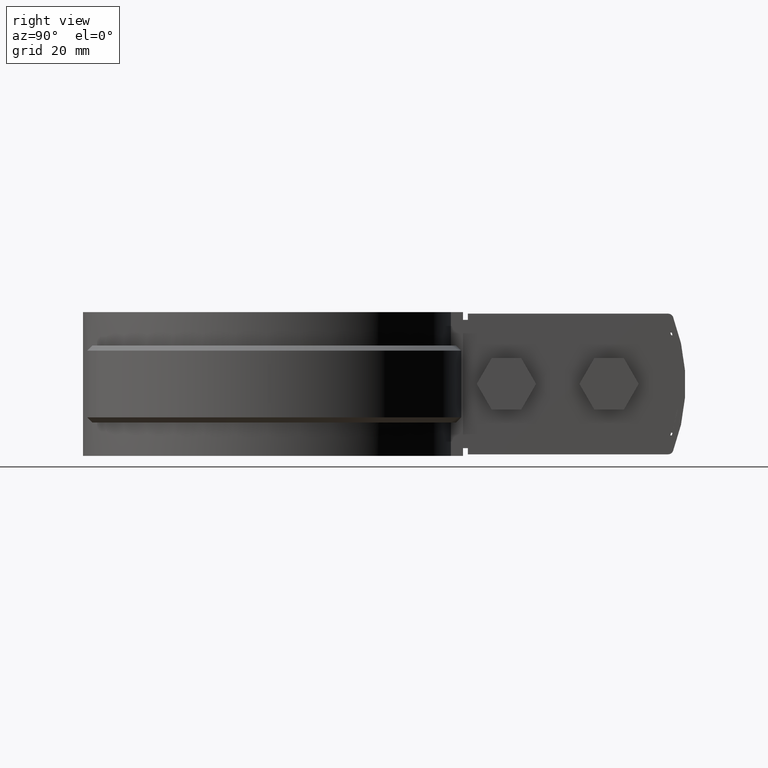
[diagram: clean part render]
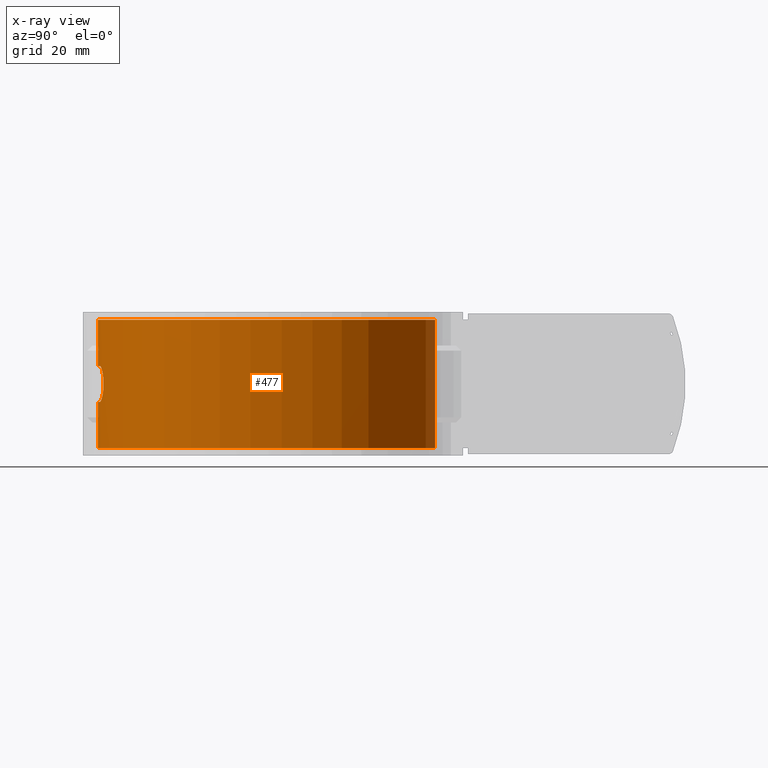
[diagram: x-ray — body ghosted, one internal face saturated and labeled with its STEP entity id]
A machine part, right view, then the same camera in x-ray: the body is ghosted and one INTERNAL B-rep face — a face not visible from any outside direction — is saturated and labeled: STEP entity #477.
In plain terms, the highlighted cylindrical surface (partial cylindrical patch) has radius 33.2 mm, axis along (0, 0, 1).
Its self-contained STEP definition (entity closure, byte-faithful):
#477 = ADVANCED_FACE( '', ( #844, #845 ), #846, .F. );
#844 = FACE_OUTER_BOUND( '', #1596, .T. );
#845 = FACE_BOUND( '', #1597, .T. );
#846 = CYLINDRICAL_SURFACE( '', #1598, 33.2000000000000 );
#1596 = EDGE_LOOP( '', ( #3446, #3447, #3448, #3449 ) );
#1597 = EDGE_LOOP( '', ( #3450, #3451, #3452, #3453, #3454, #3455, #3456, #3457, #3458, #3459, #3460, #3461, #3462, #3463, #3464, #3465 ) );
#1598 = AXIS2_PLACEMENT_3D( '', #3466, #3467, #3468 );
#3446 = ORIENTED_EDGE( '', *, *, #6889, .T. );
#3447 = ORIENTED_EDGE( '', *, *, #6890, .F. );
#3448 = ORIENTED_EDGE( '', *, *, #6891, .F. );
#3449 = ORIENTED_EDGE( '', *, *, #6836, .T. );
#3450 = ORIENTED_EDGE( '', *, *, #6892, .T. );
#3451 = ORIENTED_EDGE( '', *, *, #6844, .T. );
#3452 = ORIENTED_EDGE( '', *, *, #6847, .T. );
#3453 = ORIENTED_EDGE( '', *, *, #6893, .T. );
#3454 = ORIENTED_EDGE( '', *, *, #6894, .T. );
#3455 = ORIENTED_EDGE( '', *, *, #6895, .T. );
#3456 = ORIENTED_EDGE( '', *, *, #6896, .T. );
#3457 = ORIENTED_EDGE( '', *, *, #6897, .T. );
#3458 = ORIENTED_EDGE( '', *, *, #6898, .T. );
#3459 = ORIENTED_EDGE( '', *, *, #6899, .T. );
#3460 = ORIENTED_EDGE( '', *, *, #6900, .T. );
#3461 = ORIENTED_EDGE( '', *, *, #6901, .T. );
#3462 = ORIENTED_EDGE( '', *, *, #6902, .T. );
#3463 = ORIENTED_EDGE( '', *, *, #6903, .T. );
#3464 = ORIENTED_EDGE( '', *, *, #6904, .T. );
#3465 = ORIENTED_EDGE( '', *, *, #6905, .T. );
#3466 = CARTESIAN_POINT( '', ( 0.000000000000000, 0.000000000000000, 0.000000000000000 ) );
#3467 = DIRECTION( '', ( 0.000000000000000, 0.000000000000000, 1.00000000000000 ) );
#3468 = DIRECTION( '', ( 1.00000000000000, -6.12303176911189E-017, 0.000000000000000 ) );
#6836 = EDGE_CURVE( '', #7806, #7804, #7807, .T. );
#6844 = EDGE_CURVE( '', #7812, #7820, #7822, .T. );
#6847 = EDGE_CURVE( '', #7820, #7825, #7827, .T. );
#6889 = EDGE_CURVE( '', #7804, #7897, #7898, .T. );
#6890 = EDGE_CURVE( '', #7899, #7897, #7900, .T. );
#6891 = EDGE_CURVE( '', #7806, #7899, #7901, .T. );
#6892 = EDGE_CURVE( '', #7902, #7812, #7903, .T. );
#6893 = EDGE_CURVE( '', #7825, #7904, #7905, .T. );
#6894 = EDGE_CURVE( '', #7904, #7906, #7907, .T. );
#6895 = EDGE_CURVE( '', #7906, #7908, #7909, .T. );
#6896 = EDGE_CURVE( '', #7908, #7910, #7911, .T. );
#6897 = EDGE_CURVE( '', #7910, #7912, #7913, .T. );
#6898 = EDGE_CURVE( '', #7912, #7914, #7915, .T. );
#6899 = EDGE_CURVE( '', #7914, #7916, #7917, .T. );
#6900 = EDGE_CURVE( '', #7916, #7918, #7919, .T. );
#6901 = EDGE_CURVE( '', #7918, #7920, #7921, .T. );
#6902 = EDGE_CURVE( '', #7920, #7922, #7923, .T. );
#6903 = EDGE_CURVE( '', #7922, #7924, #7925, .T. );
#6904 = EDGE_CURVE( '', #7924, #7926, #7927, .T. );
#6905 = EDGE_CURVE( '', #7926, #7902, #7928, .T. );
#7804 = VERTEX_POINT( '', #9337 );
#7806 = VERTEX_POINT( '', #9339 );
#7807 = CIRCLE( '', #9340, 33.2000000000000 );
#7812 = VERTEX_POINT( '', #9346 );
#7820 = VERTEX_POINT( '', #9390 );
#7822 = B_SPLINE_CURVE_WITH_KNOTS( '', 3, ( #9393, #9394, #9395, #9396, #9397, #9398, #9399, #9400, #9401, #9402, #9403, #9404, #9405, #9406, #9407, #9408, #9409, #9410, #9411, #9412, #9413, #9414, #9415, #9416, #9417, #9418, #9419, #9420, #9421, #9422, #9423, #9424, #9425, #9426 ), .UNSPECIFIED., .F., .F., ( 4, 2, 2, 2, 2, 2, 2, 2, 2, 2, 2, 2, 2, 2, 2, 2, 4 ), ( 0.000000000000000, 0.000690500935310912, 0.00138100187062182, 0.00207150280593274, 0.00276200374124365, 0.00345250467655456, 0.00414300561186547, 0.00483350654717639, 0.00552400748248730, 0.00621450841779822, 0.00690500935310913, 0.00759551028842004, 0.00828601122373096, 0.00897651215904187, 0.00966701309435279, 0.0103575140296637, 0.0110480149649746 ), .UNSPECIFIED. );
#7825 = VERTEX_POINT( '', #9429 );
#7827 = CIRCLE( '', #9432, 33.2000000000000 );
#7897 = VERTEX_POINT( '', #9941 );
#7898 = LINE( '', #9942, #9943 );
#7899 = VERTEX_POINT( '', #9944 );
#7900 = CIRCLE( '', #9945, 33.2000000000000 );
#7901 = LINE( '', #9946, #9947 );
#7902 = VERTEX_POINT( '', #9948 );
#7903 = CIRCLE( '', #9949, 33.2000000000000 );
#7904 = VERTEX_POINT( '', #9950 );
#7905 = B_SPLINE_CURVE_WITH_KNOTS( '', 3, ( #9951, #9952, #9953, #9954, #9955, #9956 ), .UNSPECIFIED., .F., .F., ( 4, 2, 4 ), ( 8.20849171219253E-018, 0.000335955763121275, 0.000671911526242541 ), .UNSPECIFIED. );
#7906 = VERTEX_POINT( '', #9957 );
#7907 = ELLIPSE( '', #9958, 151.244521597733, 33.2000000000000 );
#7908 = VERTEX_POINT( '', #9959 );
#7909 = B_SPLINE_CURVE_WITH_KNOTS( '', 3, ( #9960, #9961, #9962, #9963, #9964, #9965, #9966, #9967, #9968, #9969 ), .UNSPECIFIED., .F., .F., ( 4, 2, 2, 2, 4 ), ( 0.000000000000000, 0.000671589101721857, 0.00134317820344371, 0.00201476730516557, 0.00268635640688743 ), .UNSPECIFIED. );
#7910 = VERTEX_POINT( '', #9970 );
#7911 = ELLIPSE( '', #9971, 151.244598751074, 33.2000000000000 );
#7912 = VERTEX_POINT( '', #9972 );
#7913 = B_SPLINE_CURVE_WITH_KNOTS( '', 3, ( #9973, #9974, #9975, #9976, #9977, #9978 ), .UNSPECIFIED., .F., .F., ( 4, 2, 4 ), ( 4.33680868994202E-019, 0.000335959211583017, 0.000671918423166034 ), .UNSPECIFIED. );
#7914 = VERTEX_POINT( '', #9979 );
#7915 = CIRCLE( '', #9980, 33.2000000000000 );
#7916 = VERTEX_POINT( '', #9981 );
#7917 = B_SPLINE_CURVE_WITH_KNOTS( '', 3, ( #9982, #9983, #9984, #9985, #9986, #9987, #9988, #9989, #9990, #9991, #9992, #9993, #9994, #9995, #9996, #9997, #9998, #9999, #10000, #10001, #10002, #10003, #10004, #10005, #10006, #10007, #10008, #10009, #10010, #10011, #10012, #10013, #10014, #10015 ), .UNSPECIFIED., .F., .F., ( 4, 2, 2, 2, 2, 2, 2, 2, 2, 2, 2, 2, 2, 2, 2, 2, 4 ), ( 3.46944695195361E-018, 0.000690500935310921, 0.00138100187062184, 0.00207150280593276, 0.00276200374124367, 0.00345250467655459, 0.00414300561186551, 0.00483350654717642, 0.00552400748248734, 0.00621450841779826, 0.00690500935310917, 0.00759551028842009, 0.00828601122373101, 0.00897651215904192, 0.00966701309435284, 0.0103575140296638, 0.0110480149649747 ), .UNSPECIFIED. );
#7918 = VERTEX_POINT( '', #10016 );
#7919 = CIRCLE( '', #10017, 33.2000000000000 );
#7920 = VERTEX_POINT( '', #10018 );
#7921 = B_SPLINE_CURVE_WITH_KNOTS( '', 3, ( #10019, #10020, #10021, #10022, #10023, #10024 ), .UNSPECIFIED., .F., .F., ( 4, 2, 4 ), ( 2.81892564846231E-018, 0.000335955763121325, 0.000671911526242646 ), .UNSPECIFIED. );
#7922 = VERTEX_POINT( '', #10025 );
#7923 = ELLIPSE( '', #10026, 151.244521597741, 33.2000000000000 );
#7924 = VERTEX_POINT( '', #10027 );
#7925 = B_SPLINE_CURVE_WITH_KNOTS( '', 3, ( #10028, #10029, #10030, #10031, #10032, #10033, #10034, #10035, #10036, #10037 ), .UNSPECIFIED., .F., .F., ( 4, 2, 2, 2, 4 ), ( 0.000000000000000, 0.000671589101721865, 0.00134317820344373, 0.00201476730516559, 0.00268635640688746 ), .UNSPECIFIED. );
#7926 = VERTEX_POINT( '', #10038 );
#7927 = ELLIPSE( '', #10039, 151.244598751106, 33.2000000000000 );
#7928 = B_SPLINE_CURVE_WITH_KNOTS( '', 3, ( #10040, #10041, #10042, #10043, #10044, #10045 ), .UNSPECIFIED., .F., .F., ( 4, 2, 4 ), ( 4.33680868994202E-019, 0.000335959211583063, 0.000671918423166125 ), .UNSPECIFIED. );
#9337 = CARTESIAN_POINT( '', ( 6.87845303867403, 32.4796379874338, 0.000000000000000 ) );
#9339 = CARTESIAN_POINT( '', ( -6.87845303867403, 32.4796379874339, 0.000000000000000 ) );
#9340 = AXIS2_PLACEMENT_3D( '', #13125, #13126, #13127 );
#9346 = CARTESIAN_POINT( '', ( 4.99999999999994, -32.8213345249702, -16.0000000000000 ) );
#9390 = CARTESIAN_POINT( '', ( 5.00000000000000, -32.8213345249702, -9.00000000000000 ) );
#9393 = CARTESIAN_POINT( '', ( 4.99999999999994, -32.8213345249702, -16.0000000000000 ) );
#9394 = CARTESIAN_POINT( '', ( 5.23084921030108, -32.7861669710541, -16.0000000000000 ) );
#9395 = CARTESIAN_POINT( '', ( 5.45747988297883, -32.7491523017657, -15.9773877849973 ) );
#9396 = CARTESIAN_POINT( '', ( 5.90275949577502, -32.6718302746020, -15.8891796859074 ) );
#9397 = CARTESIAN_POINT( '', ( 6.12357628297642, -32.6310894074732, -15.8225965676872 ) );
#9398 = CARTESIAN_POINT( '', ( 6.54548231117699, -32.5490836080835, -15.6485800039244 ) );
#9399 = CARTESIAN_POINT( '', ( 6.74552077936947, -32.5080826622950, -15.5421686277110 ) );
#9400 = CARTESIAN_POINT( '', ( 7.12421993363249, -32.4271950575554, -15.2909357613886 ) );
#9401 = CARTESIAN_POINT( '', ( 7.30403177727764, -32.3870131745885, -15.1444800190069 ) );
#9402 = CARTESIAN_POINT( '', ( 7.62721523967833, -32.3124293463378, -14.8236990093456 ) );
#9403 = CARTESIAN_POINT( '', ( 7.77244117980513, -32.2776495567784, -14.6485618952969 ) );
#9404 = CARTESIAN_POINT( '', ( 8.02943566167348, -32.2146809041899, -14.2678427207142 ) );
#9405 = CARTESIAN_POINT( '', ( 8.13993657243046, -32.1867949415151, -14.0630878043780 ) );
#9406 = CARTESIAN_POINT( '', ( 8.31684288693588, -32.1415379284246, -13.6406131800327 ) );
#9407 = CARTESIAN_POINT( '', ( 8.38480571156870, -32.1237809886094, -13.4205744905053 ) );
#9408 = CARTESIAN_POINT( '', ( 8.47700813326851, -32.0995732827307, -12.9634452921563 ) );
#9409 = CARTESIAN_POINT( '', ( 8.49975843460962, -32.0935212560846, -12.7339789428233 ) );
#9410 = CARTESIAN_POINT( '', ( 8.50023777599689, -32.0933943018339, -12.2733047027611 ) );
#9411 = CARTESIAN_POINT( '', ( 8.47725369520003, -32.0995073498531, -12.0394110502476 ) );
#9412 = CARTESIAN_POINT( '', ( 8.38647345527059, -32.1233445534568, -11.5860891847866 ) );
#9413 = CARTESIAN_POINT( '', ( 8.31935644896024, -32.1408880607364, -11.3664190672137 ) );
#9414 = CARTESIAN_POINT( '', ( 8.14201835896845, -32.1862690304400, -10.9408805054340 ) );
#9415 = CARTESIAN_POINT( '', ( 8.03138785948916, -32.2141900116620, -10.7356750195806 ) );
#9416 = CARTESIAN_POINT( '', ( 7.77641675908881, -32.2766877396981, -10.3567163111149 ) );
#9417 = CARTESIAN_POINT( '', ( 7.63087638544959, -32.3115738299843, -10.1801954602158 ) );
#9418 = CARTESIAN_POINT( '', ( 7.30433539945414, -32.3869535793785, -9.85556394950789 ) );
#9419 = CARTESIAN_POINT( '', ( 7.12802164774180, -32.4263568283259, -9.71198873380384 ) );
#9420 = CARTESIAN_POINT( '', ( 6.75023924814036, -32.5071004530004, -9.46056822284763 ) );
#9421 = CARTESIAN_POINT( '', ( 6.54639958869981, -32.5488968659586, -9.35189432936939 ) );
#9422 = CARTESIAN_POINT( '', ( 6.12517167846806, -32.6307877115314, -9.17796603037221 ) );
#9423 = CARTESIAN_POINT( '', ( 5.90822165067789, -32.6708479035511, -9.11222808005995 ) );
#9424 = CARTESIAN_POINT( '', ( 5.46154876269565, -32.7484789100686, -9.02309938480425 ) );
#9425 = CARTESIAN_POINT( '', ( 5.23085094566291, -32.7861667066892, -8.99999999999998 ) );
#9426 = CARTESIAN_POINT( '', ( 5.00000000000000, -32.8213345249702, -8.99999999999997 ) );
#9429 = CARTESIAN_POINT( '', ( 1.64999999999995, -33.1589731445351, -9.00000000000000 ) );
#9432 = AXIS2_PLACEMENT_3D( '', #13138, #13139, #13140 );
#9941 = CARTESIAN_POINT( '', ( 6.87845303867403, 32.4796379874338, -25.0000000000000 ) );
#9942 = CARTESIAN_POINT( '', ( 6.87845303867403, 32.4796379874338, 0.000000000000000 ) );
#9943 = VECTOR( '', #13172, 1000.00000000000 );
#9944 = CARTESIAN_POINT( '', ( -6.87845303867403, 32.4796379874339, -25.0000000000000 ) );
#9945 = AXIS2_PLACEMENT_3D( '', #13173, #13174, #13175 );
#9946 = CARTESIAN_POINT( '', ( -6.87845303867403, 32.4796379874339, 0.000000000000000 ) );
#9947 = VECTOR( '', #13176, 1000.00000000000 );
#9948 = CARTESIAN_POINT( '', ( 1.65000000000001, -33.1589731445351, -16.0000000000000 ) );
#9949 = AXIS2_PLACEMENT_3D( '', #13177, #13178, #13179 );
#9950 = CARTESIAN_POINT( '', ( 1.16219499999998, -33.1796519388310, -8.60975599999999 ) );
#9951 = CARTESIAN_POINT( '', ( 1.64999999999995, -33.1589731445351, -8.99999999999995 ) );
#9952 = CARTESIAN_POINT( '', ( 1.53654422514443, -33.1646187363843, -9.00000000048690 ) );
#9953 = CARTESIAN_POINT( '', ( 1.42641379671062, -33.1694621353122, -8.96140842161096 ) );
#9954 = CARTESIAN_POINT( '', ( 1.24907930742234, -33.1766133827599, -8.81961094403617 ) );
#9955 = CARTESIAN_POINT( '', ( 1.18713070278866, -33.1787785074534, -8.72058134794849 ) );
#9956 = CARTESIAN_POINT( '', ( 1.16219499999998, -33.1796519388310, -8.60975599999999 ) );
#9957 = CARTESIAN_POINT( '', ( 0.975609757981812, -33.1856623498783, -7.78048781325256 ) );
#9958 = AXIS2_PLACEMENT_3D( '', #13180, #13181, #13182 );
#9959 = CARTESIAN_POINT( '', ( -0.975610000000026, -33.1856623427633, -7.78048800000004 ) );
#9960 = CARTESIAN_POINT( '', ( 0.975609757981814, -33.1856623498783, -7.78048781325255 ) );
#9961 = CARTESIAN_POINT( '', ( 0.925762326756759, -33.1871277911825, -7.55894376460343 ) );
#9962 = CARTESIAN_POINT( '', ( 0.802004548308670, -33.1907854075813, -7.36098149337162 ) );
#9963 = CARTESIAN_POINT( '', ( 0.447399790430913, -33.1974589493705, -7.07729236627280 ) );
#9964 = CARTESIAN_POINT( '', ( 0.227086304491498, -33.2000000047057, -6.99999986304586 ) );
#9965 = CARTESIAN_POINT( '', ( -0.227087680434378, -33.1999999952943, -7.00000013008715 ) );
#9966 = CARTESIAN_POINT( '', ( -0.447417765261210, -33.1974586569516, -7.07730346466726 ) );
#9967 = CARTESIAN_POINT( '', ( -0.802003740815405, -33.1907853769145, -7.36098380924595 ) );
#9968 = CARTESIAN_POINT( '', ( -0.925762610374490, -33.1871277832084, -7.55894393822003 ) );
#9969 = CARTESIAN_POINT( '', ( -0.975610000000026, -33.1856623427633, -7.78048800000004 ) );
#9970 = CARTESIAN_POINT( '', ( -1.16219512100914, -33.1796519345924, -8.60975609337373 ) );
#9971 = AXIS2_PLACEMENT_3D( '', #13183, #13184, #13185 );
#9972 = CARTESIAN_POINT( '', ( -1.65000000000003, -33.1589731445351, -9.00000000000000 ) );
#9973 = CARTESIAN_POINT( '', ( -1.16219512100916, -33.1796519345924, -8.60975609337372 ) );
#9974 = CARTESIAN_POINT( '', ( -1.18713081660252, -33.1787785033758, -8.72058141156409 ) );
#9975 = CARTESIAN_POINT( '', ( -1.24907585165398, -33.1766135180091, -8.81960754419904 ) );
#9976 = CARTESIAN_POINT( '', ( -1.42641418271852, -33.1694621238552, -8.96140929482023 ) );
#9977 = CARTESIAN_POINT( '', ( -1.53654425413596, -33.1646187349416, -8.99999999999994 ) );
#9978 = CARTESIAN_POINT( '', ( -1.65000000000003, -33.1589731445351, -8.99999999999994 ) );
#9979 = CARTESIAN_POINT( '', ( -5.00000000000005, -32.8213345249702, -9.00000000000000 ) );
#9980 = AXIS2_PLACEMENT_3D( '', #13186, #13187, #13188 );
#9981 = CARTESIAN_POINT( '', ( -5.00000000000005, -32.8213345249702, -16.0000000000000 ) );
#9982 = CARTESIAN_POINT( '', ( -5.00000000000005, -32.8213345249702, -8.99999999999997 ) );
#9983 = CARTESIAN_POINT( '', ( -5.23084921030119, -32.7861669710541, -8.99999999999997 ) );
#9984 = CARTESIAN_POINT( '', ( -5.45747988297895, -32.7491523017657, -9.02261221500260 ) );
#9985 = CARTESIAN_POINT( '', ( -5.90275949577514, -32.6718302746020, -9.11082031409260 ) );
#9986 = CARTESIAN_POINT( '', ( -6.12357628297654, -32.6310894074732, -9.17740343231274 ) );
#9987 = CARTESIAN_POINT( '', ( -6.54548231117711, -32.5490836080835, -9.35141999607550 ) );
#9988 = CARTESIAN_POINT( '', ( -6.74552077936960, -32.5080826622950, -9.45783137228895 ) );
#9989 = CARTESIAN_POINT( '', ( -7.12421993363261, -32.4271950575553, -9.70906423861131 ) );
#9990 = CARTESIAN_POINT( '', ( -7.30403177727776, -32.3870131745885, -9.85551998099308 ) );
#9991 = CARTESIAN_POINT( '', ( -7.62721523967846, -32.3124293463377, -10.1763009906544 ) );
#9992 = CARTESIAN_POINT( '', ( -7.77244117980526, -32.2776495567784, -10.3514381047031 ) );
#9993 = CARTESIAN_POINT( '', ( -8.02943566167360, -32.2146809041898, -10.7321572792858 ) );
#9994 = CARTESIAN_POINT( '', ( -8.13993657243058, -32.1867949415151, -10.9369121956220 ) );
#9995 = CARTESIAN_POINT( '', ( -8.31684288693600, -32.1415379284246, -11.3593868199673 ) );
#9996 = CARTESIAN_POINT( '', ( -8.38480571156882, -32.1237809886094, -11.5794255094947 ) );
#9997 = CARTESIAN_POINT( '', ( -8.47700813326862, -32.0995732827306, -12.0365547078436 ) );
#9998 = CARTESIAN_POINT( '', ( -8.49975843460973, -32.0935212560846, -12.2660210571767 ) );
#9999 = CARTESIAN_POINT( '', ( -8.50023777599700, -32.0933943018339, -12.7266952972389 ) );
#10000 = CARTESIAN_POINT( '', ( -8.47725369520014, -32.0995073498531, -12.9605889497524 ) );
#10001 = CARTESIAN_POINT( '', ( -8.38647345527069, -32.1233445534567, -13.4139108152134 ) );
#10002 = CARTESIAN_POINT( '', ( -8.31935644896034, -32.1408880607364, -13.6335809327863 ) );
#10003 = CARTESIAN_POINT( '', ( -8.14201835896855, -32.1862690304400, -14.0591194945660 ) );
#10004 = CARTESIAN_POINT( '', ( -8.03138785948925, -32.2141900116619, -14.2643249804194 ) );
#10005 = CARTESIAN_POINT( '', ( -7.77641675908889, -32.2766877396980, -14.6432836888851 ) );
#10006 = CARTESIAN_POINT( '', ( -7.63087638544967, -32.3115738299843, -14.8198045397842 ) );
#10007 = CARTESIAN_POINT( '', ( -7.30433539945421, -32.3869535793785, -15.1444360504921 ) );
#10008 = CARTESIAN_POINT( '', ( -7.12802164774187, -32.4263568283259, -15.2880112661961 ) );
#10009 = CARTESIAN_POINT( '', ( -6.75023924814043, -32.5071004530004, -15.5394317771523 ) );
#10010 = CARTESIAN_POINT( '', ( -6.54639958869988, -32.5488968659585, -15.6481056706306 ) );
#10011 = CARTESIAN_POINT( '', ( -6.12517167846813, -32.6307877115314, -15.8220339696278 ) );
#10012 = CARTESIAN_POINT( '', ( -5.90822165067795, -32.6708479035511, -15.8877719199400 ) );
#10013 = CARTESIAN_POINT( '', ( -5.46154876269571, -32.7484789100686, -15.9769006151957 ) );
#10014 = CARTESIAN_POINT( '', ( -5.23085094566297, -32.7861667066892, -16.0000000000000 ) );
#10015 = CARTESIAN_POINT( '', ( -5.00000000000005, -32.8213345249702, -16.0000000000000 ) );
#10016 = CARTESIAN_POINT( '', ( -1.65000000000006, -33.1589731445351, -16.0000000000000 ) );
#10017 = AXIS2_PLACEMENT_3D( '', #13189, #13190, #13191 );
#10018 = CARTESIAN_POINT( '', ( -1.16219500000000, -33.1796519388310, -16.3902440000000 ) );
#10019 = CARTESIAN_POINT( '', ( -1.65000000000006, -33.1589731445351, -16.0000000000000 ) );
#10020 = CARTESIAN_POINT( '', ( -1.53654422514452, -33.1646187363843, -15.9999999995130 ) );
#10021 = CARTESIAN_POINT( '', ( -1.42641379671069, -33.1694621353122, -16.0385915783890 ) );
#10022 = CARTESIAN_POINT( '', ( -1.24907930742238, -33.1766133827599, -16.1803890559638 ) );
#10023 = CARTESIAN_POINT( '', ( -1.18713070278869, -33.1787785074534, -16.2794186520514 ) );
#10024 = CARTESIAN_POINT( '', ( -1.16219500000000, -33.1796519388310, -16.3902440000000 ) );
#10025 = CARTESIAN_POINT( '', ( -0.975609757981852, -33.1856623498783, -17.2195121867475 ) );
#10026 = AXIS2_PLACEMENT_3D( '', #13192, #13193, #13194 );
#10027 = CARTESIAN_POINT( '', ( 0.975610000000013, -33.1856623427633, -17.2195120000000 ) );
#10028 = CARTESIAN_POINT( '', ( -0.975609757981852, -33.1856623498783, -17.2195121867475 ) );
#10029 = CARTESIAN_POINT( '', ( -0.925762326756794, -33.1871277911825, -17.4410562353966 ) );
#10030 = CARTESIAN_POINT( '', ( -0.802004548308702, -33.1907854075813, -17.6390185066284 ) );
#10031 = CARTESIAN_POINT( '', ( -0.447399790430939, -33.1974589493705, -17.9227076337272 ) );
#10032 = CARTESIAN_POINT( '', ( -0.227086304491522, -33.2000000047057, -18.0000001369542 ) );
#10033 = CARTESIAN_POINT( '', ( 0.227087680434360, -33.1999999952943, -17.9999998699129 ) );
#10034 = CARTESIAN_POINT( '', ( 0.447417765261194, -33.1974586569516, -17.9226965353327 ) );
#10035 = CARTESIAN_POINT( '', ( 0.802003740815392, -33.1907853769145, -17.6390161907541 ) );
#10036 = CARTESIAN_POINT( '', ( 0.925762610374477, -33.1871277832084, -17.4410560617800 ) );
#10037 = CARTESIAN_POINT( '', ( 0.975610000000014, -33.1856623427633, -17.2195120000000 ) );
#10038 = CARTESIAN_POINT( '', ( 1.16219512100908, -33.1796519345924, -16.3902439066263 ) );
#10039 = AXIS2_PLACEMENT_3D( '', #13195, #13196, #13197 );
#10040 = CARTESIAN_POINT( '', ( 1.16219512100909, -33.1796519345924, -16.3902439066263 ) );
#10041 = CARTESIAN_POINT( '', ( 1.18713081660245, -33.1787785033758, -16.2794185884359 ) );
#10042 = CARTESIAN_POINT( '', ( 1.24907585165390, -33.1766135180091, -16.1803924558009 ) );
#10043 = CARTESIAN_POINT( '', ( 1.42641418271845, -33.1694621238552, -16.0385907051797 ) );
#10044 = CARTESIAN_POINT( '', ( 1.53654425413592, -33.1646187349416, -16.0000000000000 ) );
#10045 = CARTESIAN_POINT( '', ( 1.65000000000001, -33.1589731445351, -16.0000000000000 ) );
#13125 = CARTESIAN_POINT( '', ( 0.000000000000000, 0.000000000000000, 0.000000000000000 ) );
#13126 = DIRECTION( '', ( 0.000000000000000, 0.000000000000000, 1.00000000000000 ) );
#13127 = DIRECTION( '', ( 1.00000000000000, -6.12303176911189E-017, 0.000000000000000 ) );
#13138 = CARTESIAN_POINT( '', ( 0.000000000000000, 0.000000000000000, -9.00000000000000 ) );
#13139 = DIRECTION( '', ( 6.12303176911189E-017, 0.000000000000000, -1.00000000000000 ) );
#13140 = DIRECTION( '', ( -1.00000000000000, 0.000000000000000, -6.12303176911189E-017 ) );
#13172 = DIRECTION( '', ( 0.000000000000000, 0.000000000000000, -1.00000000000000 ) );
#13173 = CARTESIAN_POINT( '', ( 0.000000000000000, 0.000000000000000, -25.0000000000000 ) );
#13174 = DIRECTION( '', ( 0.000000000000000, 0.000000000000000, 1.00000000000000 ) );
#13175 = DIRECTION( '', ( 1.00000000000000, -6.12303176911189E-017, 0.000000000000000 ) );
#13176 = DIRECTION( '', ( 0.000000000000000, 0.000000000000000, -1.00000000000000 ) );
#13177 = CARTESIAN_POINT( '', ( 0.000000000000000, 0.000000000000000, -16.0000000000000 ) );
#13178 = DIRECTION( '', ( -6.12303176911189E-017, 0.000000000000000, 1.00000000000000 ) );
#13179 = DIRECTION( '', ( 1.00000000000000, 0.000000000000000, 6.12303176911189E-017 ) );
#13180 = CARTESIAN_POINT( '', ( 0.000000000000000, 0.000000000000000, -3.44444212055030 ) );
#13181 = DIRECTION( '', ( -0.975609781292647, 0.000000000000000, -0.219512083143762 ) );
#13182 = DIRECTION( '', ( 0.219512083143762, 0.000000000000000, -0.975609781292647 ) );
#13183 = CARTESIAN_POINT( '', ( 0.000000000000000, 0.000000000000000, -3.44443890776446 ) );
#13184 = DIRECTION( '', ( 0.975609806487711, 0.000000000000000, -0.219511971165610 ) );
#13185 = DIRECTION( '', ( -0.219511971165610, 0.000000000000000, -0.975609806487711 ) );
#13186 = CARTESIAN_POINT( '', ( 0.000000000000000, 0.000000000000000, -9.00000000000000 ) );
#13187 = DIRECTION( '', ( 6.12303176911189E-017, 0.000000000000000, -1.00000000000000 ) );
#13188 = DIRECTION( '', ( -1.00000000000000, 0.000000000000000, -6.12303176911189E-017 ) );
#13189 = CARTESIAN_POINT( '', ( 0.000000000000000, 0.000000000000000, -16.0000000000000 ) );
#13190 = DIRECTION( '', ( -6.12303176911189E-017, 0.000000000000000, 1.00000000000000 ) );
#13191 = DIRECTION( '', ( 1.00000000000000, 0.000000000000000, 6.12303176911189E-017 ) );
#13192 = CARTESIAN_POINT( '', ( 0.000000000000000, 0.000000000000000, -21.5555578794501 ) );
#13193 = DIRECTION( '', ( 0.975609781292650, 0.000000000000000, 0.219512083143750 ) );
#13194 = DIRECTION( '', ( 0.219512083143750, 0.000000000000000, -0.975609781292650 ) );
#13195 = CARTESIAN_POINT( '', ( 0.000000000000000, 0.000000000000000, -21.5555610922364 ) );
#13196 = DIRECTION( '', ( -0.975609806487721, 0.000000000000000, 0.219511971165564 ) );
#13197 = DIRECTION( '', ( -0.219511971165564, 0.000000000000000, -0.975609806487721 ) );